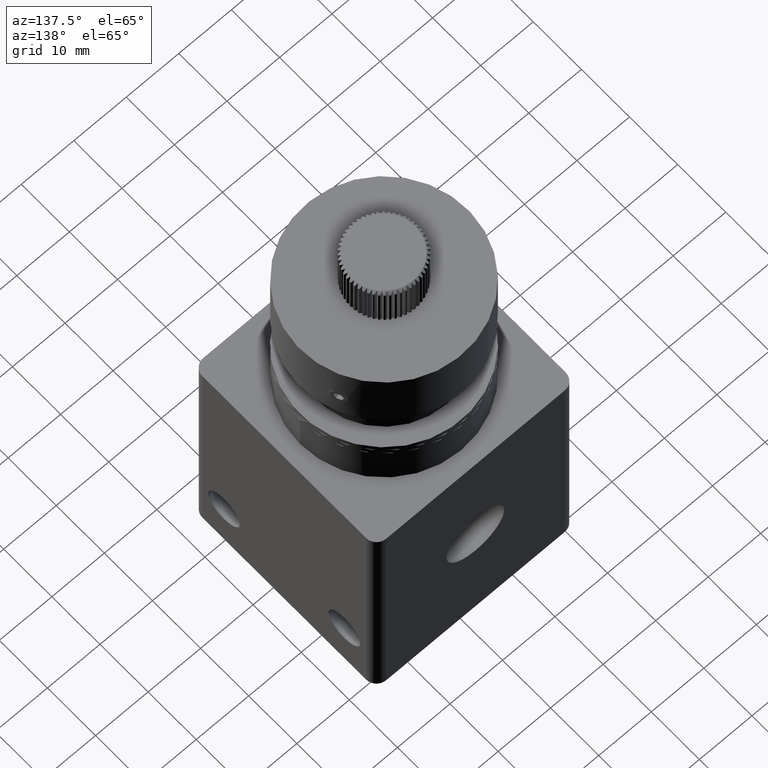
[diagram: clean part render]
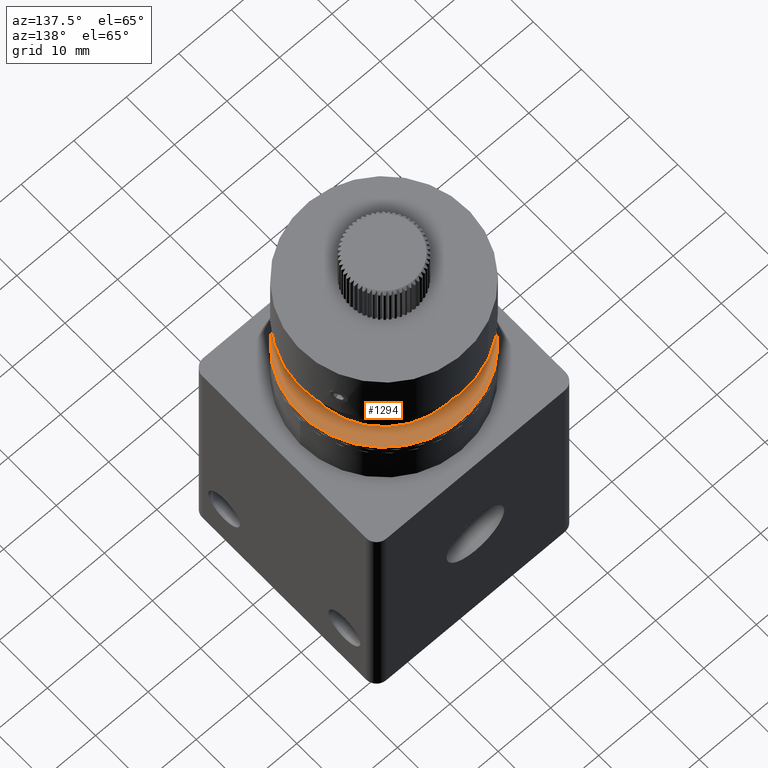
[diagram: same view with one face highlighted and labeled with its STEP entity id]
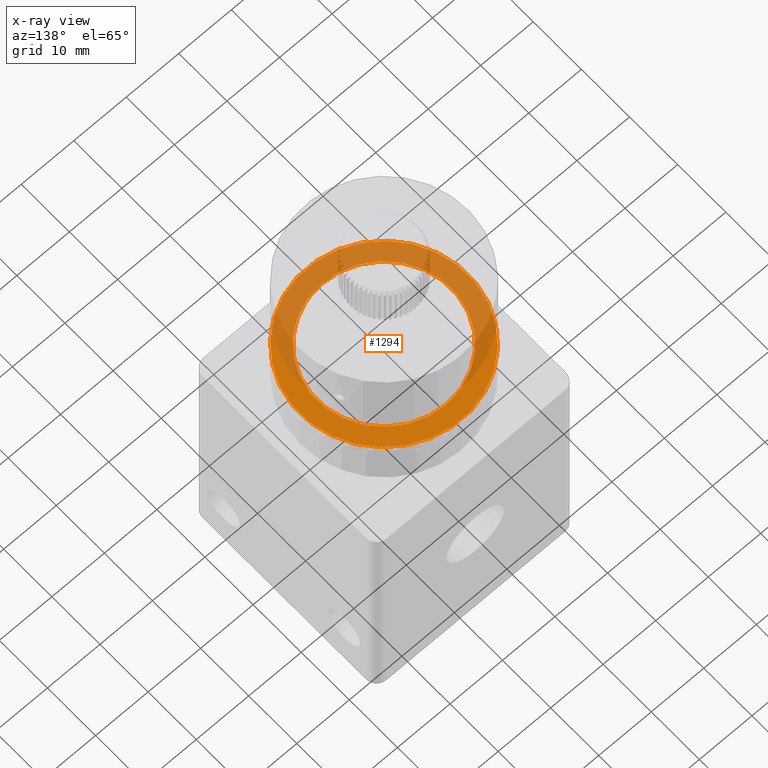
[diagram: x-ray of the same camera — body ghosted, the highlighted face saturated]
A machine part, auxiliary view. The second image highlights one B-rep face of the part: STEP entity #1294.
The next image is the same camera in x-ray: the body ghosted, the highlighted face saturated — about 55% of this face is hidden behind the body in this view.
In plain terms, the highlighted planar face has unit normal (0, 0, 1).
Its self-contained STEP definition (entity closure, byte-faithful):
#13 = CIRCLE ( 'NONE', #5728, 12.80000000000002200 ) ;
#197 = AXIS2_PLACEMENT_3D ( 'NONE', #2934, #5515, #7421 ) ;
#416 = DIRECTION ( 'NONE',  ( 0.9949676288097065700, -0.1001968942671882200, 0.0000000000000000000 ) ) ;
#480 = VERTEX_POINT ( 'NONE', #5818 ) ;
#611 = DIRECTION ( 'NONE',  ( 0.0000000000000000000, 0.0000000000000000000, 1.000000000000000000 ) ) ;
#727 = AXIS2_PLACEMENT_3D ( 'NONE', #7446, #5484, #416 ) ;
#740 = DIRECTION ( 'NONE',  ( 0.9949676288097065700, -0.1001968942671882400, 0.0000000000000000000 ) ) ;
#957 = EDGE_CURVE ( 'NONE', #480, #2023, #1928, .T. ) ;
#1067 = VERTEX_POINT ( 'NONE', #2818 ) ;
#1095 = ORIENTED_EDGE ( 'NONE', *, *, #6055, .F. ) ;
#1294 = ADVANCED_FACE ( 'NONE', ( #5841, #2429 ), #4549, .T. ) ;
#1564 = CARTESIAN_POINT ( 'NONE',  ( 37.62291667820560500, 52.78689962133748300, 60.22749317272972300 ) ) ;
#1571 = EDGE_LOOP ( 'NONE', ( #1095, #3327 ) ) ;
#1928 = CIRCLE ( 'NONE', #4808, 16.00000000000002500 ) ;
#2023 = VERTEX_POINT ( 'NONE', #8209 ) ;
#2429 = FACE_BOUND ( 'NONE', #1571, .T. ) ;
#2584 = EDGE_LOOP ( 'NONE', ( #7741, #7195 ) ) ;
#2818 = CARTESIAN_POINT ( 'NONE',  ( 24.88733102944135900, 54.06941986795749200, 60.22749317272972300 ) ) ;
#2934 = CARTESIAN_POINT ( 'NONE',  ( 37.62291667820560500, 52.78689962133748300, 60.22749317272972300 ) ) ;
#3198 = CARTESIAN_POINT ( 'NONE',  ( 37.62291667820560500, 52.78689962133748300, 60.22749317272972300 ) ) ;
#3320 = CARTESIAN_POINT ( 'NONE',  ( 37.62291667820560500, 52.78689962133748300, 60.22749317272972300 ) ) ;
#3327 = ORIENTED_EDGE ( 'NONE', *, *, #6616, .F. ) ;
#4170 = VERTEX_POINT ( 'NONE', #5381 ) ;
#4549 = PLANE ( 'NONE',  #4623 ) ;
#4623 = AXIS2_PLACEMENT_3D ( 'NONE', #3198, #611, #5197 ) ;
#4688 = EDGE_CURVE ( 'NONE', #2023, #480, #6266, .T. ) ;
#4788 = DIRECTION ( 'NONE',  ( 0.9949676288097065700, -0.1001968942671882200, 0.0000000000000000000 ) ) ;
#4808 = AXIS2_PLACEMENT_3D ( 'NONE', #3320, #7079, #740 ) ;
#5197 = DIRECTION ( 'NONE',  ( 0.9949676288097065700, -0.1001968942671882700, 0.0000000000000000000 ) ) ;
#5381 = CARTESIAN_POINT ( 'NONE',  ( 50.35850232696984800, 51.50437937471746600, 60.22749317272972300 ) ) ;
#5484 = DIRECTION ( 'NONE',  ( 0.0000000000000000000, 0.0000000000000000000, 1.000000000000000000 ) ) ;
#5515 = DIRECTION ( 'NONE',  ( 0.0000000000000000000, 0.0000000000000000000, 1.000000000000000000 ) ) ;
#5728 = AXIS2_PLACEMENT_3D ( 'NONE', #1564, #6160, #4788 ) ;
#5818 = CARTESIAN_POINT ( 'NONE',  ( 21.70343461725029500, 54.39004992961249500, 60.22749317272972300 ) ) ;
#5841 = FACE_OUTER_BOUND ( 'NONE', #2584, .T. ) ;
#6055 = EDGE_CURVE ( 'NONE', #1067, #4170, #13, .T. ) ;
#6160 = DIRECTION ( 'NONE',  ( 0.0000000000000000000, 0.0000000000000000000, 1.000000000000000000 ) ) ;
#6266 = CIRCLE ( 'NONE', #197, 16.00000000000002500 ) ;
#6616 = EDGE_CURVE ( 'NONE', #4170, #1067, #6847, .T. ) ;
#6847 = CIRCLE ( 'NONE', #727, 12.80000000000002200 ) ;
#7079 = DIRECTION ( 'NONE',  ( 0.0000000000000000000, 0.0000000000000000000, 1.000000000000000000 ) ) ;
#7195 = ORIENTED_EDGE ( 'NONE', *, *, #4688, .T. ) ;
#7421 = DIRECTION ( 'NONE',  ( 0.9949676288097065700, -0.1001968942671882400, 0.0000000000000000000 ) ) ;
#7446 = CARTESIAN_POINT ( 'NONE',  ( 37.62291667820560500, 52.78689962133748300, 60.22749317272972300 ) ) ;
#7741 = ORIENTED_EDGE ( 'NONE', *, *, #957, .T. ) ;
#8209 = CARTESIAN_POINT ( 'NONE',  ( 53.54239873916090200, 51.18374931306246400, 60.22749317272972300 ) ) ;